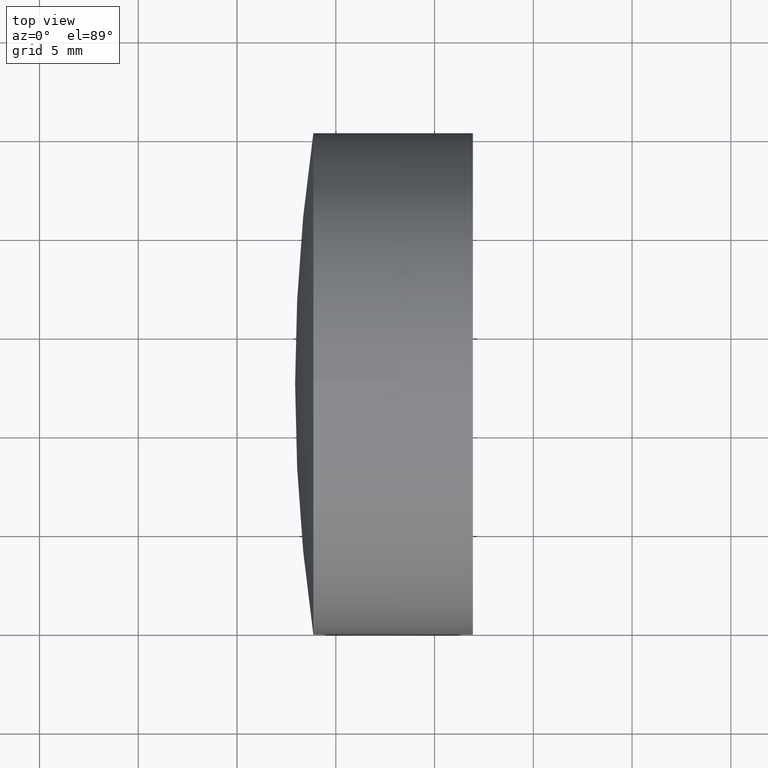
[diagram: clean part render]
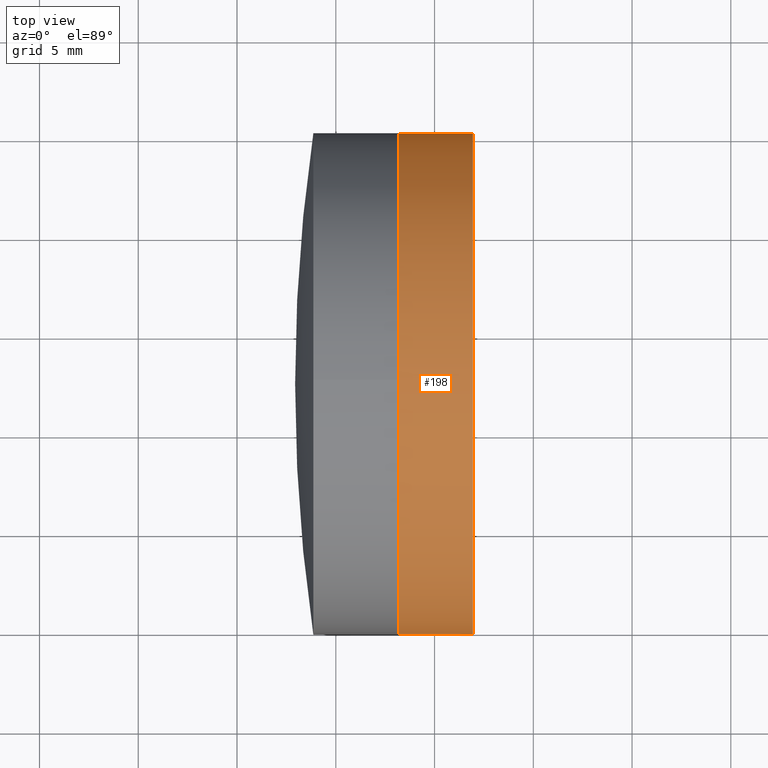
[diagram: same view with one face highlighted and labeled with its STEP entity id]
A machine part, top view. The second image highlights one B-rep face of the part: STEP entity #198.
In plain terms, the highlighted cylindrical surface (partial cylindrical patch) has radius 12.7 mm, axis along (1, 0, -0).
Its self-contained STEP definition (entity closure, byte-faithful):
#10 = VECTOR ( 'NONE', #369, 1000.000000000000000 ) ;
#14 = LINE ( 'NONE', #303, #196 ) ;
#16 = DIRECTION ( 'NONE',  ( 1.000000000000000000, 1.224646799147351975E-16, -0.000000000000000000 ) ) ;
#20 = CARTESIAN_POINT ( 'NONE',  ( -28.05941295107895428, 45.19878037169511487, 0.000000000000000000 ) ) ;
#29 = ORIENTED_EDGE ( 'NONE', *, *, #315, .F. ) ;
#37 = VERTEX_POINT ( 'NONE', #20 ) ;
#43 = VERTEX_POINT ( 'NONE', #275 ) ;
#46 = CARTESIAN_POINT ( 'NONE',  ( -28.05941295107897204, 45.19878037169512197, 0.000000000000000000 ) ) ;
#56 = CARTESIAN_POINT ( 'NONE',  ( -28.05941295107895428, 19.79878037169513405, 1.555301434917137841E-15 ) ) ;
#60 = DIRECTION ( 'NONE',  ( 1.000000000000000000, 1.224646799147351975E-16, -0.000000000000000000 ) ) ;
#62 = AXIS2_PLACEMENT_3D ( 'NONE', #340, #72, #68 ) ;
#68 = DIRECTION ( 'NONE',  ( 0.000000000000000000, 1.000000000000000000, 0.000000000000000000 ) ) ;
#72 = DIRECTION ( 'NONE',  ( 1.000000000000000000, 1.224646799147351975E-16, -0.000000000000000000 ) ) ;
#88 = FACE_OUTER_BOUND ( 'NONE', #207, .T. ) ;
#91 = VERTEX_POINT ( 'NONE', #169 ) ;
#133 = CIRCLE ( 'NONE', #142, 12.69999999999998863 ) ;
#142 = AXIS2_PLACEMENT_3D ( 'NONE', #278, #16, #311 ) ;
#148 = VERTEX_POINT ( 'NONE', #56 ) ;
#155 = DIRECTION ( 'NONE',  ( 1.000000000000000000, 1.224646799147351975E-16, -0.000000000000000000 ) ) ;
#169 = CARTESIAN_POINT ( 'NONE',  ( -31.82558590161918488, 19.79878037169516958, 1.555301434917134686E-15 ) ) ;
#192 = LINE ( 'NONE', #46, #10 ) ;
#196 = VECTOR ( 'NONE', #155, 1000.000000000000000 ) ;
#198 = ADVANCED_FACE ( 'NONE', ( #88 ), #325, .T. ) ;
#207 = EDGE_LOOP ( 'NONE', ( #267, #265, #29, #362 ) ) ;
#213 = CIRCLE ( 'NONE', #62, 12.70000000000000284 ) ;
#235 = AXIS2_PLACEMENT_3D ( 'NONE', #327, #60, #365 ) ;
#265 = ORIENTED_EDGE ( 'NONE', *, *, #271, .T. ) ;
#267 = ORIENTED_EDGE ( 'NONE', *, *, #299, .T. ) ;
#271 = EDGE_CURVE ( 'NONE', #91, #148, #14, .T. ) ;
#275 = CARTESIAN_POINT ( 'NONE',  ( -31.82558590161918488, 45.19878037169509355, 0.000000000000000000 ) ) ;
#278 = CARTESIAN_POINT ( 'NONE',  ( -28.05941295107895428, 32.49878037169512623, 0.000000000000000000 ) ) ;
#299 = EDGE_CURVE ( 'NONE', #43, #91, #213, .T. ) ;
#303 = CARTESIAN_POINT ( 'NONE',  ( -28.05941295107897204, 19.79878037169512695, 1.555301434917138038E-15 ) ) ;
#306 = EDGE_CURVE ( 'NONE', #43, #37, #192, .T. ) ;
#311 = DIRECTION ( 'NONE',  ( 0.000000000000000000, 1.000000000000000000, 0.000000000000000000 ) ) ;
#315 = EDGE_CURVE ( 'NONE', #37, #148, #133, .T. ) ;
#325 = CYLINDRICAL_SURFACE ( 'NONE', #235, 12.69999999999999574 ) ;
#327 = CARTESIAN_POINT ( 'NONE',  ( -28.05941295107897204, 32.49878037169512623, 0.000000000000000000 ) ) ;
#340 = CARTESIAN_POINT ( 'NONE',  ( -31.82558590161919909, 32.49878037169512623, 0.000000000000000000 ) ) ;
#362 = ORIENTED_EDGE ( 'NONE', *, *, #306, .F. ) ;
#365 = DIRECTION ( 'NONE',  ( 0.000000000000000000, 1.000000000000000000, 0.000000000000000000 ) ) ;
#369 = DIRECTION ( 'NONE',  ( 1.000000000000000000, 1.224646799147351975E-16, -0.000000000000000000 ) ) ;